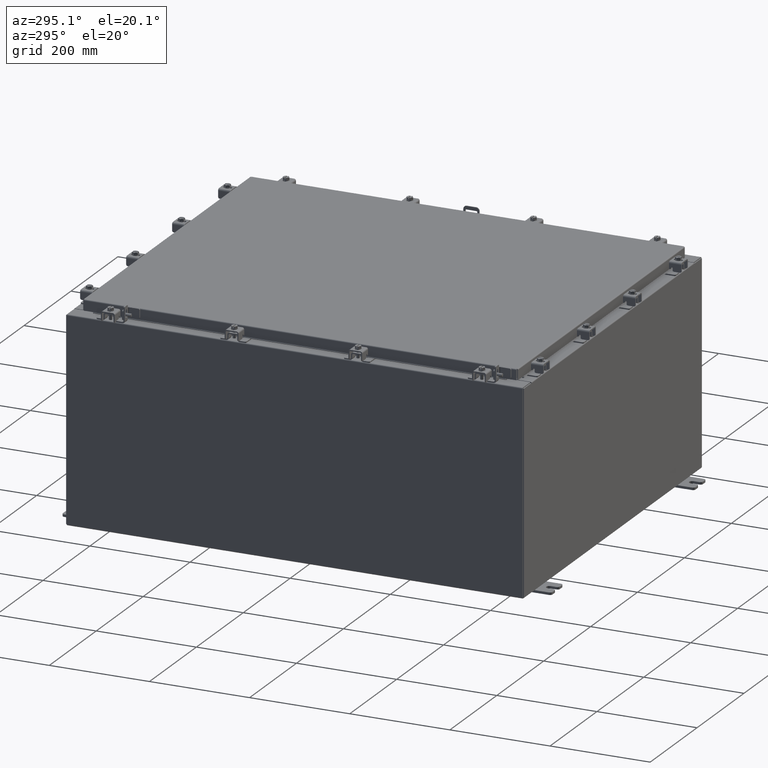
[diagram: clean part render]
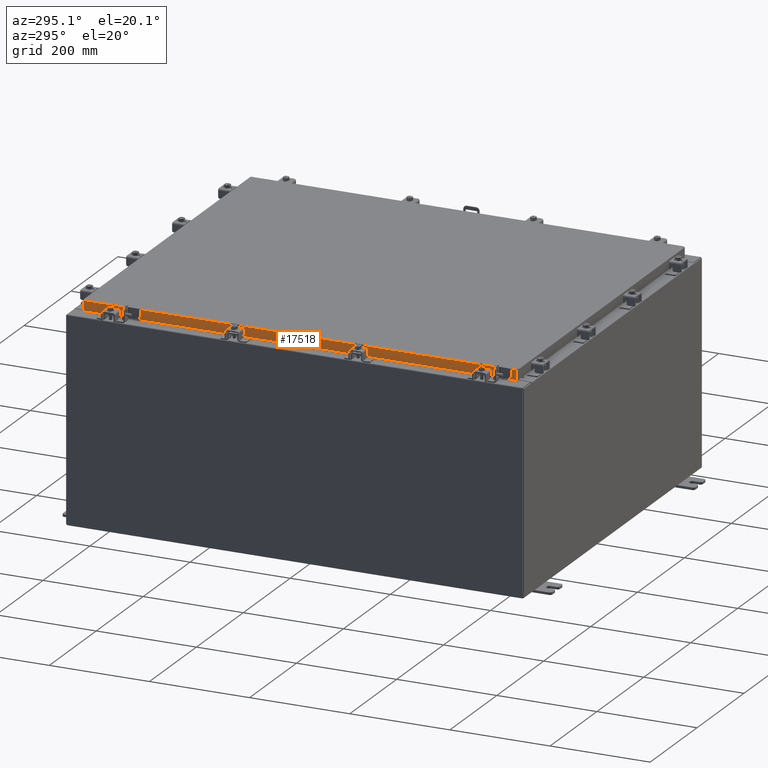
[diagram: same view with one face highlighted and labeled with its STEP entity id]
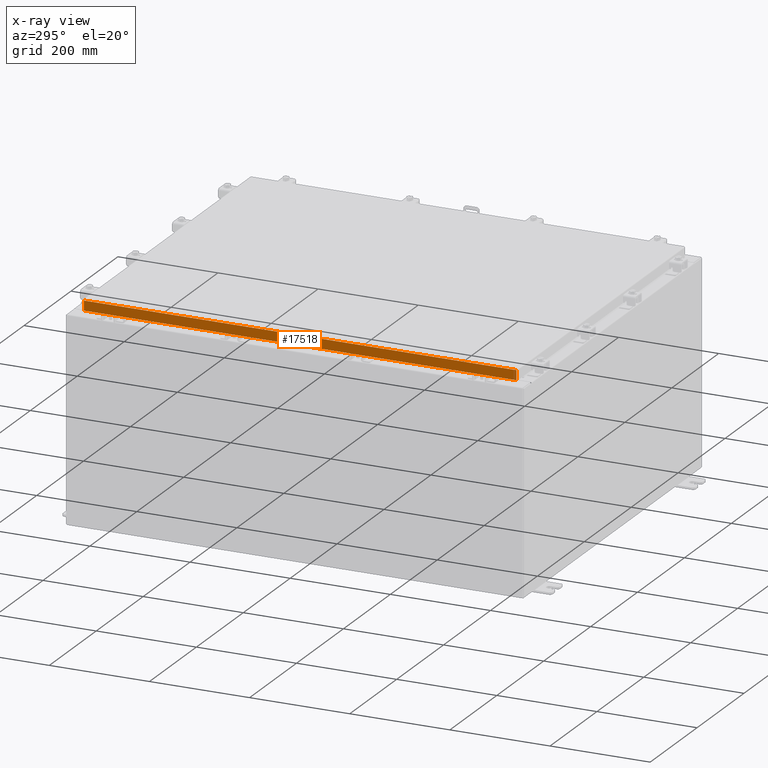
[diagram: x-ray of the same camera — body ghosted, the highlighted face saturated]
A machine part, auxiliary view. The second image highlights one B-rep face of the part: STEP entity #17518.
The next image is the same camera in x-ray: the body ghosted, the highlighted face saturated — about 0% of this face is hidden behind the body in this view.
In plain terms, the highlighted planar face has unit normal (1, 0, -0).
Its self-contained STEP definition (entity closure, byte-faithful):
#41 = LINE ( 'NONE', #14057, #14527 ) ;
#127 = LINE ( 'NONE', #9640, #9608 ) ;
#346 = LINE ( 'NONE', #18570, #5415 ) ;
#1492 = ORIENTED_EDGE ( 'NONE', *, *, #12715, .F. ) ;
#1715 = DIRECTION ( 'NONE',  ( -2.818880942772360500E-015, 6.982962677686269100E-015, -1.000000000000000000 ) ) ;
#2078 = ORIENTED_EDGE ( 'NONE', *, *, #14096, .F. ) ;
#2163 = CARTESIAN_POINT ( 'NONE',  ( -14.07800000000000300, -17.00515786437626900, -0.8499999999999996400 ) ) ;
#2355 = EDGE_CURVE ( 'NONE', #13145, #7406, #127, .T. ) ;
#3001 = CARTESIAN_POINT ( 'NONE',  ( -14.07799999999999400, 16.25515786437627200, -0.8500000000000025300 ) ) ;
#3371 = VERTEX_POINT ( 'NONE', #4994 ) ;
#3672 = AXIS2_PLACEMENT_3D ( 'NONE', #9558, #22773, #11430 ) ;
#4200 = EDGE_CURVE ( 'NONE', #11813, #23159, #346, .T. ) ;
#4269 = VERTEX_POINT ( 'NONE', #9326 ) ;
#4387 = ORIENTED_EDGE ( 'NONE', *, *, #24075, .T. ) ;
#4878 = EDGE_CURVE ( 'NONE', #7406, #11813, #18663, .T. ) ;
#4994 = CARTESIAN_POINT ( 'NONE',  ( -14.07799999999999900, 17.00515786437626500, -0.08770000000000007000 ) ) ;
#5276 = ORIENTED_EDGE ( 'NONE', *, *, #4878, .F. ) ;
#5387 = DIRECTION ( 'NONE',  ( -0.0000000000000000000, 1.000000000000000000, -0.0000000000000000000 ) ) ;
#5415 = VECTOR ( 'NONE', #5387, 39.37007874015748100 ) ;
#5619 = CARTESIAN_POINT ( 'NONE',  ( -14.07799999999999400, -16.25515786437626500, -0.8500000000000025300 ) ) ;
#7406 = VERTEX_POINT ( 'NONE', #2163 ) ;
#9284 = LINE ( 'NONE', #9557, #19337 ) ;
#9326 = CARTESIAN_POINT ( 'NONE',  ( -14.07800000000000300, 17.00515786437627200, -0.8499999999999953100 ) ) ;
#9480 = PLANE ( 'NONE',  #3672 ) ;
#9500 = ORIENTED_EDGE ( 'NONE', *, *, #4200, .F. ) ;
#9557 = CARTESIAN_POINT ( 'NONE',  ( -14.07800000000000300, -17.09400000000000100, -0.8499999999999996400 ) ) ;
#9558 = CARTESIAN_POINT ( 'NONE',  ( -14.07799999999999900, -4.915098524856876500E-030, 3.994501956836086200E-014 ) ) ;
#9608 = VECTOR ( 'NONE', #11523, 39.37007874015748100 ) ;
#9640 = CARTESIAN_POINT ( 'NONE',  ( -14.07799999999999900, -17.00515786437627200, -0.07469999999999978000 ) ) ;
#11381 = CARTESIAN_POINT ( 'NONE',  ( -14.07799999999999900, -17.00515786437626900, -0.08770000000000007000 ) ) ;
#11430 = DIRECTION ( 'NONE',  ( -2.818880942772360100E-015, 0.0000000000000000000, -1.000000000000000000 ) ) ;
#11523 = DIRECTION ( 'NONE',  ( -2.818880942772360500E-015, 6.982962677686269100E-015, -1.000000000000000000 ) ) ;
#11813 = VERTEX_POINT ( 'NONE', #5619 ) ;
#12715 = EDGE_CURVE ( 'NONE', #3371, #13145, #41, .T. ) ;
#13145 = VERTEX_POINT ( 'NONE', #11381 ) ;
#13547 = FACE_OUTER_BOUND ( 'NONE', #18363, .T. ) ;
#13804 = CARTESIAN_POINT ( 'NONE',  ( -14.07800000000000300, -17.09400000000000100, -0.8499999999999996400 ) ) ;
#14057 = CARTESIAN_POINT ( 'NONE',  ( -14.07799999999999900, -17.09400000000000100, -0.08770000000000007000 ) ) ;
#14096 = EDGE_CURVE ( 'NONE', #23159, #4269, #9284, .T. ) ;
#14392 = VECTOR ( 'NONE', #1715, 39.37007874015748100 ) ;
#14527 = VECTOR ( 'NONE', #15925, 39.37007874015748100 ) ;
#14988 = ORIENTED_EDGE ( 'NONE', *, *, #2355, .F. ) ;
#15679 = DIRECTION ( 'NONE',  ( 4.379057701015054300E-047, 1.000000000000000000, 1.238552822680358400E-016 ) ) ;
#15925 = DIRECTION ( 'NONE',  ( 3.491332948470575600E-031, -1.000000000000000000, -9.516562228463834600E-046 ) ) ;
#17518 = ADVANCED_FACE ( 'NONE', ( #13547 ), #9480, .F. ) ;
#18363 = EDGE_LOOP ( 'NONE', ( #1492, #4387, #2078, #9500, #5276, #14988 ) ) ;
#18570 = CARTESIAN_POINT ( 'NONE',  ( -14.07799999999999400, -16.25515786437626900, -0.8500000000000025300 ) ) ;
#18663 = LINE ( 'NONE', #13804, #22506 ) ;
#19337 = VECTOR ( 'NONE', #22771, 39.37007874015748100 ) ;
#19430 = LINE ( 'NONE', #24366, #14392 ) ;
#22506 = VECTOR ( 'NONE', #15679, 39.37007874015748100 ) ;
#22771 = DIRECTION ( 'NONE',  ( 4.379057701015054300E-047, 1.000000000000000000, 1.238552822680358400E-016 ) ) ;
#22773 = DIRECTION ( 'NONE',  ( 1.000000000000000000, 3.491332948470575600E-031, -2.818880942772360100E-015 ) ) ;
#23159 = VERTEX_POINT ( 'NONE', #3001 ) ;
#24075 = EDGE_CURVE ( 'NONE', #3371, #4269, #19430, .T. ) ;
#24366 = CARTESIAN_POINT ( 'NONE',  ( -14.07799999999999900, 17.00515786437626500, 1.586914022634634500E-013 ) ) ;